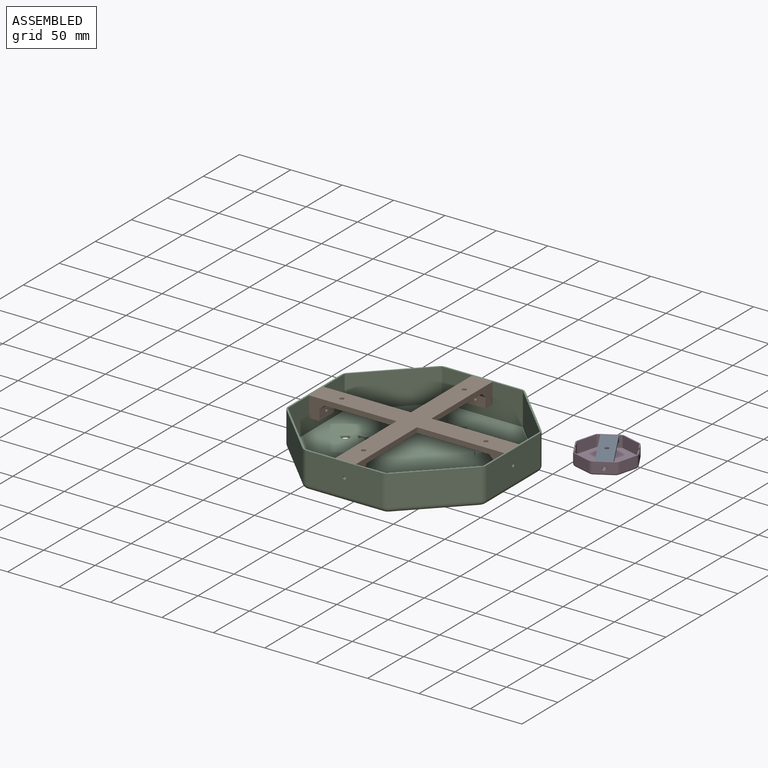
[diagram: assembled view]
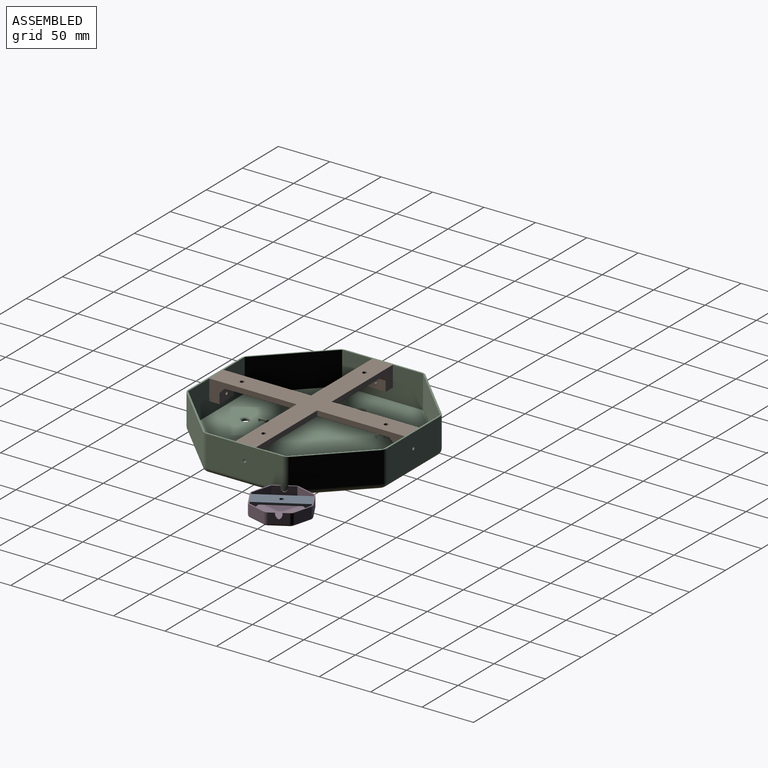
[diagram: assembled view, second angle]
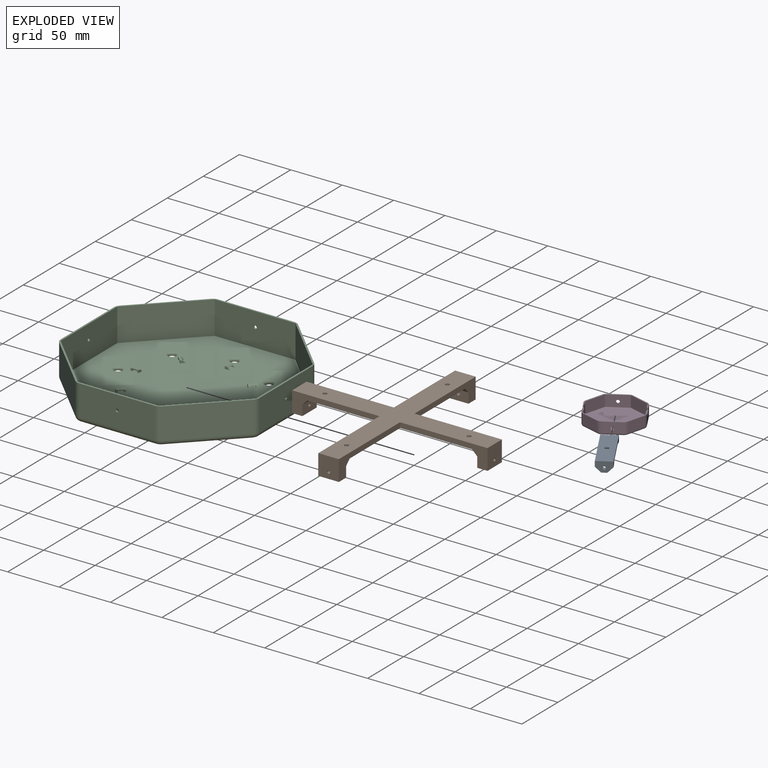
[diagram: exploded view]
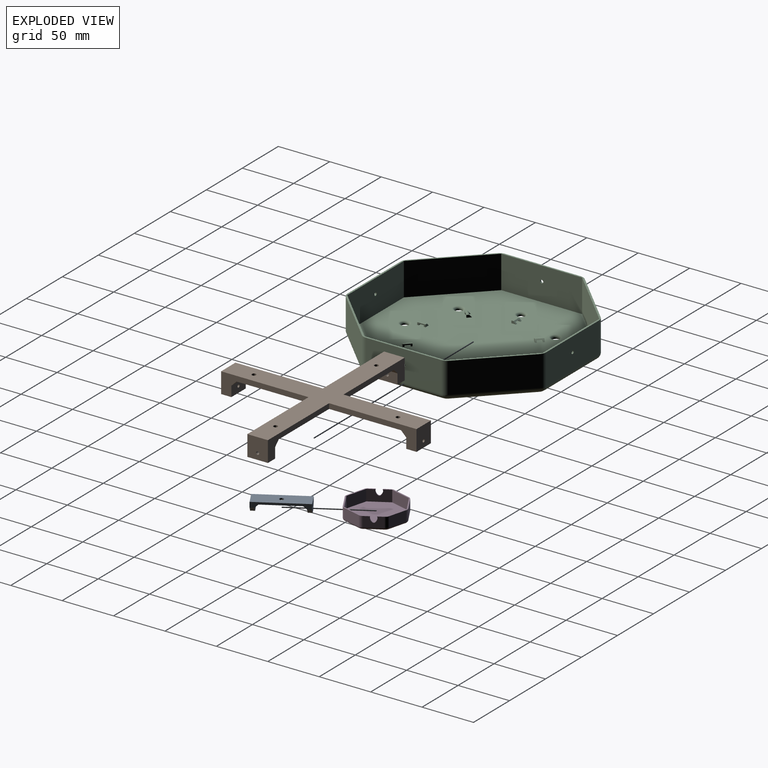
[diagram: exploded view, second angle]
ASSEMBLY  parts=4 mates=2
PART A: 20 faces, bbox 51.1x16.1x11.1 mm
  f0: plane 36.01x15.01mm, normal (0,0,1), area 505.8mm2, adj f1,f3,f11,f12,f15
  f1: plane 50x5mm, normal (0,1,0), area 137.2mm2, adj f0,f2,f4,f6,f11,f12,f16,f18
  f2: plane 15x10mm, normal (-1,0,0), area 118.4mm2, adj f1,f3,f6,f8,f13,f18,f19
  f3: plane 50x5mm, normal (0,-1,0), area 137.2mm2, adj f0,f2,f4,f6,f11,f12,f17,f19
  f4: plane 15x10mm, normal (1,0,0), area 118.4mm2, adj f1,f3,f6,f10,f14,f16,f17
  f5: cylinder r=2mm len=4mm, axis (0,0,-1), area 10.1mm2, adj f6,f15
  f6: plane 50x15mm, normal (0,0,-1), area 737.4mm2, adj f1,f2,f3,f4,f5
  f7: plane 14.8x4.9mm, normal (1,0,0), area 42.8mm2, adj f8,f11,f13,f18,f19
  f8: plane 5x4mm, normal (0,0,1), area 20mm2, adj f2,f7,f18,f19
  f9: plane 14.8x4.9mm, normal (-1,0,0), area 42.8mm2, adj f10,f12,f14,f16,f17
  f10: plane 5x4mm, normal (0,0,1), area 20mm2, adj f4,f9,f16,f17
  f11: plane 16.1x4.1mm, normal (0.71,0,0.71), area 62.4mm2, adj f0,f1,f3,f7,f13,f18,f19
  f12: plane 15.26x3.26mm, normal (-0.71,0,0.71), area 62.4mm2, adj f0,f1,f3,f9,f14,f16,f17
  f13: cylinder r=1.45mm len=4mm, axis (-1,0,0), area 36.4mm2, adj f2,f7,f11
  f14: cylinder r=1.45mm len=4.55mm, axis (1,0,0), area 37.2mm2, adj f4,f9,f12
  f15: bspline ~6.6x6.6mm, area 32.4mm2, adj f0,f5
  f16: plane 5x5mm, normal (0,0.71,0.71), area 28.3mm2, adj f1,f4,f9,f10,f12
  f17: plane 5x5mm, normal (0,-0.71,0.71), area 28.3mm2, adj f3,f4,f9,f10,f12
  f18: plane 5x5mm, normal (0,0.71,0.71), area 28.3mm2, adj f1,f2,f7,f8,f11
  f19: plane 5x5mm, normal (0,-0.71,0.71), area 28.3mm2, adj f2,f3,f7,f8,f11
PART B: 95 faces, bbox 190.1x190.1x20.1 mm
  f0: plane 160x160mm, normal (0,0,1), area 2949.5mm2, adj f2,f3,f5,f6,f8,f9,f11,f12
  f1: plane 20x20mm, normal (-1,0,0), area 393.4mm2, adj f2,f12,f13,f15,f27
  f2: plane 85x20mm, normal (0,-1,0), area 587.5mm2, adj f0,f1,f3,f13,f14,f15,f23
  f3: plane 85x20mm, normal (-1,0,0), area 587.5mm2, adj f0,f2,f4,f13,f20,f21,f25
  f4: plane 20x20mm, normal (0,-1,0), area 393.4mm2, adj f3,f5,f13,f21,f28
  f5: plane 85x20mm, normal (1,0,0), area 587.5mm2, adj f0,f4,f6,f13,f20,f21,f25
  f6: plane 85x20mm, normal (0,-1,0), area 587.5mm2, adj f0,f5,f7,f13,f16,f17,f24
  f7: plane 20x20mm, normal (1,0,0), area 393.4mm2, adj f6,f8,f13,f17,f29
  f8: plane 85x20mm, normal (0,1,0), area 587.5mm2, adj f0,f7,f9,f13,f16,f17,f24
  f9: plane 85x20mm, normal (1,0,0), area 587.5mm2, adj f0,f8,f10,f13,f18,f19,f22
  f10: plane 20x20mm, normal (0,1,0), area 393.4mm2, adj f9,f11,f13,f19,f26
  f11: plane 85x20mm, normal (-1,0,0), area 587.5mm2, adj f0,f10,f12,f13,f18,f19,f22
  f12: plane 85x20mm, normal (0,1,0), area 587.5mm2, adj f0,f1,f11,f13,f14,f15,f23
  f13: plane 190x190mm, normal (0,0,-1), area 7149.7mm2, adj f1,f2,f3,f4,f5,f6,f7,f8
  f14: plane 20x10mm, normal (1,0,0), area 193.4mm2, adj f2,f12,f15,f23,f27
  f15: plane 20x10mm, normal (0,0,1), area 200mm2, adj f1,f2,f12,f14
  f16: plane 20x10mm, normal (-1,0,0), area 193.4mm2, adj f6,f8,f17,f24,f29
  f17: plane 20x10mm, normal (0,0,1), area 200mm2, adj f6,f7,f8,f16
  f18: plane 20x10mm, normal (0,-1,0), area 193.4mm2, adj f9,f11,f19,f22,f26
  f19: plane 20x10mm, normal (0,0,1), area 200mm2, adj f9,f10,f11,f18
  f20: plane 20x10mm, normal (0,1,0), area 193.4mm2, adj f3,f5,f21,f25,f28
  f21: plane 20x10mm, normal (0,0,1), area 200mm2, adj f3,f4,f5,f20
  f22: plane 20x5mm, normal (0,-0.71,0.71), area 141.4mm2, adj f0,f9,f11,f18,f56
  f23: plane 20x5mm, normal (0.71,0,0.71), area 141.4mm2, adj f0,f2,f12,f14,f45
  f24: plane 20x5mm, normal (-0.71,0,0.71), area 141.4mm2, adj f0,f6,f8,f16,f67
  f25: plane 20x5mm, normal (0,0.71,0.71), area 141.4mm2, adj f0,f3,f5,f20,f74
  f26: cylinder r=1.45mm len=10mm, axis (0,1,0), area 91.1mm2, adj f10,f18
  f27: cylinder r=1.45mm len=10mm, axis (-1,0,0), area 91.1mm2, adj f1,f14
  f28: cylinder r=1.45mm len=10mm, axis (0,-1,0), area 91.1mm2, adj f4,f20
  f29: cylinder r=1.45mm len=10mm, axis (1,0,0), area 91.1mm2, adj f7,f16
  f30: cylinder r=2mm len=4mm, axis (0,0,1), area 50.3mm2, adj f13,f34
  f31: cylinder r=2mm len=4mm, axis (0,0,1), area 50.3mm2, adj f13,f35
  f32: cylinder r=2mm len=4mm, axis (0,0,1), area 50.3mm2, adj f13,f36
  f33: cylinder r=2mm len=4mm, axis (0,0,1), area 50.3mm2, adj f13,f37
  f34: cone r=2mm half-angle=45deg, axis (0,0,1), area 22.2mm2, adj f0,f30
  f35: cone r=2mm half-angle=45deg, axis (0,0,1), area 22.2mm2, adj f0,f31
  f36: cone r=2mm half-angle=45deg, axis (0,0,1), area 22.2mm2, adj f0,f32
  f37: cone r=2mm half-angle=45deg, axis (0,0,1), area 22.2mm2, adj f0,f33
  f38: cylinder r=5.45mm len=10.9mm, axis (-1,0,0), area 42.4mm2, adj f40,f41,f43,f47
  f39: plane 12x3.34mm, normal (-0.71,0,-0.71), area 56.7mm2, adj f41,f42,f45,f46
  f40: plane 2x0.93mm, normal (0,0,-1), area 1.9mm2, adj f38,f41,f43,f46
  f41: plane 12x7.66mm, normal (-1,0,0), area 23.9mm2, adj f38,f39,f40,f42,f46,f47
  f42: plane 16.33x12.09mm, normal (0,-1,0), area 43.1mm2, adj f0,f39,f41,f43,f44,f45,f47,f48
  f43: plane 12x12mm, normal (1,0,0), area 76mm2, adj f38,f40,f42,f44,f46,f47
  f44: plane 16.24x12mm, normal (0,0,1), area 170.7mm2, adj f42,f43,f46,f48
  f45: plane 12x5.66mm, normal (0,0,-1), area 67.9mm2, adj f23,f39,f42,f46
  f46: plane 16.33x12.09mm, normal (0,1,0), area 43.1mm2, adj f0,f39,f40,f41,f43,f44,f45,f48
  f47: plane 2x0.93mm, normal (0,0,-1), area 1.9mm2, adj f38,f41,f42,f43
  f48: cone r=4.83mm half-angle=45deg, axis (0,0,1), area 19.2mm2, adj f0,f42,f44,f46
  f49: cylinder r=5.45mm len=10.9mm, axis (0,1,0), area 42.4mm2, adj f51,f52,f53,f58
  f50: plane 12x3.34mm, normal (0,0.71,-0.71), area 56.7mm2, adj f52,f54,f56,f57
  f51: plane 2x0.93mm, normal (0,0,-1), area 1.9mm2, adj f49,f52,f53,f54
  f52: plane 12x7.66mm, normal (0,1,0), area 23.9mm2, adj f49,f50,f51,f54,f57,f58
  f53: plane 12x12mm, normal (0,-1,0), area 76mm2, adj f49,f51,f54,f55,f57,f58
  f54: plane 16.33x12.09mm, normal (-1,0,0), area 43.1mm2, adj f0,f50,f51,f52,f53,f55,f56,f59
  f55: plane 16.24x12mm, normal (0,0,1), area 170.7mm2, adj f53,f54,f57,f59
  f56: plane 12x5.66mm, normal (0,0,-1), area 67.9mm2, adj f22,f50,f54,f57
  f57: plane 16.33x12.09mm, normal (1,0,0), area 43.1mm2, adj f0,f50,f52,f53,f55,f56,f58,f59
  f58: plane 2x0.93mm, normal (0,0,-1), area 1.9mm2, adj f49,f52,f53,f57
  f59: cone r=4.83mm half-angle=45deg, axis (0,0,1), area 19.2mm2, adj f0,f54,f55,f57
  f60: cylinder r=5.45mm len=10.9mm, axis (1,0,0), area 42.4mm2, adj f62,f63,f65,f69
  f61: plane 12x3.34mm, normal (0.71,0,-0.71), area 56.7mm2, adj f63,f66,f67,f68
  f62: plane 2x0.93mm, normal (0,0,-1), area 1.9mm2, adj f60,f63,f65,f66
  f63: plane 12x7.66mm, normal (1,0,0), area 23.9mm2, adj f60,f61,f62,f66,f68,f69
  f64: plane 16.24x12mm, normal (0,0,1), area 170.7mm2, adj f65,f66,f68,f70
  f65: plane 12x12mm, normal (-1,0,0), area 76mm2, adj f60,f62,f64,f66,f68,f69
  f66: plane 16.33x12.09mm, normal (0,1,0), area 43.1mm2, adj f0,f61,f62,f63,f64,f65,f67,f70
  f67: plane 12x5.66mm, normal (0,0,-1), area 67.9mm2, adj f24,f61,f66,f68
  f68: plane 16.33x12.09mm, normal (0,-1,0), area 43.1mm2, adj f0,f61,f63,f64,f65,f67,f69,f70
  f69: plane 2x0.93mm, normal (0,0,-1), area 1.9mm2, adj f60,f63,f65,f68
  f70: cone r=4.83mm half-angle=45deg, axis (0,0,1), area 19.2mm2, adj f0,f64,f66,f68
  f71: cone r=4.83mm half-angle=45deg, axis (0,0,1), area 19.2mm2, adj f0,f73,f75,f76
  f72: plane 2x0.93mm, normal (0,0,-1), area 1.9mm2, adj f76,f77,f78,f81
  f73: plane 16.33x12.09mm, normal (-1,0,0), area 43.1mm2, adj f0,f71,f74,f75,f77,f78,f79,f80
  f74: plane 12x5.66mm, normal (0,0,-1), area 67.9mm2, adj f25,f73,f76,f80
  f75: plane 16.24x12mm, normal (0,0,1), area 170.7mm2, adj f71,f73,f76,f77
  f76: plane 16.33x12.09mm, normal (1,0,0), area 43.1mm2, adj f0,f71,f72,f74,f75,f77,f78,f80
  f77: plane 12x12mm, normal (0,1,0), area 76mm2, adj f72,f73,f75,f76,f79,f81
  f78: plane 12x7.66mm, normal (0,-1,0), area 23.9mm2, adj f72,f73,f76,f79,f80,f81
  f79: plane 2x0.93mm, normal (0,0,-1), area 1.9mm2, adj f73,f77,f78,f81
  f80: plane 12x3.34mm, normal (0,-0.71,-0.71), area 56.7mm2, adj f73,f74,f76,f78
  f81: cylinder r=5.45mm len=10.9mm, axis (0,-1,0), area 42.4mm2, adj f72,f77,f78,f79
  f82: cone r=4.83mm half-angle=45deg, axis (0,0,1), area 19.2mm2, adj f0,f86,f88,f92
  f83: plane 59.33x1.09mm, normal (1,0,0), area 58.5mm2, adj f0,f88,f92,f93
  f84: plane 59.33x1.09mm, normal (0,-1,0), area 58.5mm2, adj f0,f89,f92,f94
  f85: plane 59.33x1.09mm, normal (-1,0,0), area 58.5mm2, adj f0,f90,f91,f92
  f86: plane 59.33x1.09mm, normal (0,1,0), area 58.5mm2, adj f0,f82,f87,f92
  f87: plane 59.33x1.09mm, normal (1,0,0), area 58.5mm2, adj f0,f86,f91,f92
  f88: plane 59.33x1.09mm, normal (0,-1,0), area 58.5mm2, adj f0,f82,f83,f92
  f89: plane 59.33x1.09mm, normal (-1,0,0), area 58.5mm2, adj f0,f84,f92,f93
  f90: plane 59.33x1.09mm, normal (0,1,0), area 58.5mm2, adj f0,f85,f92,f94
  f91: cone r=4.83mm half-angle=45deg, axis (0,0,1), area 19.2mm2, adj f0,f85,f87,f92
  f92: plane 130.49x130.49mm, normal (0,0,1), area 2890.7mm2, adj f82,f83,f84,f85,f86,f87,f88,f89
  f93: cone r=4.83mm half-angle=45deg, axis (0,0,1), area 19.2mm2, adj f0,f83,f89,f92
  f94: cone r=4.83mm half-angle=45deg, axis (0,0,1), area 19.2mm2, adj f0,f84,f90,f92
PART C: 127 faces, bbox 193.2x193.2x35.4 mm
  f0: plane 183.2x183.2mm, normal (0,0,-1), area 27511.8mm2, adj f19,f20,f21,f22,f23,f24,f25,f26
  f1: plane 55.65x55.65mm, normal (0.71,0.71,0), area 2518.4mm2, adj f2,f16,f17,f18
  f2: plane 78.7x32mm, normal (1,0,0), area 2510.9mm2, adj f1,f3,f17,f18,f126
  f3: plane 55.65x55.65mm, normal (0.71,-0.71,0), area 2518.4mm2, adj f2,f4,f17,f18
  f4: plane 78.7x32mm, normal (0,-1,0), area 2510.9mm2, adj f3,f5,f17,f18,f125
  f5: plane 55.65x55.65mm, normal (-0.71,-0.71,0), area 2518.4mm2, adj f4,f6,f17,f18
  f6: plane 78.7x32mm, normal (-1,0,0), area 2510.9mm2, adj f5,f7,f17,f18,f124
  f7: plane 55.65x55.65mm, normal (-0.71,0.71,0), area 2518.4mm2, adj f6,f16,f17,f18
  f8: plane 73.4x30mm, normal (1,0,0), area 2194.4mm2, adj f17,f24,f29,f33,f124
  f9: plane 51.9x51.9mm, normal (0.71,0.71,0), area 2202mm2, adj f17,f22,f33,f37
  f10: plane 73.4x30mm, normal (0,1,0), area 2194.4mm2, adj f17,f20,f37,f41,f125
  f11: plane 51.9x51.9mm, normal (-0.71,0.71,0), area 2202mm2, adj f17,f19,f39,f41
  f12: plane 73.4x30mm, normal (-1,0,0), area 2194.4mm2, adj f17,f21,f35,f39,f126
  f13: plane 51.9x51.9mm, normal (-0.71,-0.71,0), area 2202mm2, adj f17,f23,f31,f35
  f14: plane 73.4x30mm, normal (0,-1,0), area 2194.4mm2, adj f17,f25,f27,f31,f123
  f15: plane 51.9x51.9mm, normal (0.71,-0.71,0), area 2202mm2, adj f17,f26,f27,f29
  f16: plane 78.7x32mm, normal (0,1,0), area 2510.9mm2, adj f1,f7,f17,f18,f123
  f17: plane 193.2x193.2mm, normal (0,0,1), area 1004.8mm2, adj f1,f2,f3,f4,f5,f6,f7,f8
  f18: plane 190x190mm, normal (0,0,1), area 29065.3mm2, adj f1,f2,f3,f4,f5,f6,f7,f16
  f19: cylinder r=5mm len=55.44mm, axis (-0.71,-0.71,0), area 576.5mm2, adj f0,f11,f40,f42
  f20: cylinder r=5mm len=73.4mm, axis (-1,0,0), area 576.5mm2, adj f0,f10,f38,f42
  f21: cylinder r=5mm len=73.4mm, axis (0,-1,0), area 576.5mm2, adj f0,f12,f36,f40
  f22: cylinder r=5mm len=55.44mm, axis (-0.71,0.71,0), area 576.5mm2, adj f0,f9,f34,f38
  f23: cylinder r=5mm len=55.44mm, axis (0.71,-0.71,0), area 576.5mm2, adj f0,f13,f32,f36
  f24: cylinder r=5mm len=73.4mm, axis (0,1,0), area 576.5mm2, adj f0,f8,f30,f34
  f25: cylinder r=5mm len=73.4mm, axis (1,0,0), area 576.5mm2, adj f0,f14,f28,f32
  f26: cylinder r=5mm len=55.44mm, axis (0.71,0.71,0), area 576.5mm2, adj f0,f15,f28,f30
  f27: cylinder r=8mm len=30mm, axis (0,0,-1), area 188.5mm2, adj f14,f15,f17,f28
  f28: torus R=3mm, axis (0,0,1), area 38.1mm2, adj f0,f25,f26,f27
  f29: cylinder r=8mm len=30mm, axis (0,0,-1), area 188.5mm2, adj f8,f15,f17,f30
  f30: torus R=3mm, axis (0,0,1), area 38.1mm2, adj f0,f24,f26,f29
  f31: cylinder r=8mm len=30mm, axis (0,0,-1), area 188.5mm2, adj f13,f14,f17,f32
  f32: torus R=3mm, axis (0,0,1), area 38.1mm2, adj f0,f23,f25,f31
  f33: cylinder r=8mm len=30mm, axis (0,0,-1), area 188.5mm2, adj f8,f9,f17,f34
  f34: torus R=3mm, axis (0,0,1), area 38.1mm2, adj f0,f22,f24,f33
  f35: cylinder r=8mm len=30mm, axis (0,0,-1), area 188.5mm2, adj f12,f13,f17,f36
  f36: torus R=3mm, axis (0,0,1), area 38.1mm2, adj f0,f21,f23,f35
  f37: cylinder r=8mm len=30mm, axis (0,0,-1), area 188.5mm2, adj f9,f10,f17,f38
  f38: torus R=3mm, axis (0,0,1), area 38.1mm2, adj f0,f20,f22,f37
  f39: cylinder r=8mm len=30mm, axis (0,0,-1), area 188.5mm2, adj f11,f12,f17,f40
  f40: torus R=3mm, axis (0,0,1), area 38.1mm2, adj f0,f19,f21,f39
  f41: cylinder r=8mm len=30mm, axis (0,0,-1), area 188.5mm2, adj f10,f11,f17,f42
  f42: torus R=3mm, axis (0,0,1), area 38.1mm2, adj f0,f19,f20,f41
  f43: cylinder r=3.4mm len=6.8mm, axis (0,0,1), area 21.4mm2, adj f0,f44
  f44: torus R=5.4mm, axis (0,0,1), area 81.5mm2, adj f18,f43
  f45: cylinder r=3.4mm len=6.8mm, axis (0,0,1), area 21.4mm2, adj f0,f46
  f46: torus R=5.4mm, axis (0,0,1), area 81.5mm2, adj f18,f45
  f47: cylinder r=3.4mm len=6.8mm, axis (0,0,1), area 21.4mm2, adj f0,f48
  f48: torus R=5.4mm, axis (0,0,1), area 81.5mm2, adj f18,f47
  f49: cylinder r=3.4mm len=6.8mm, axis (0,0,1), area 21.4mm2, adj f0,f50
  f50: torus R=5.4mm, axis (0,0,1), area 81.5mm2, adj f18,f49
  f51: cylinder r=3.4mm len=6.8mm, axis (0,0,1), area 21.4mm2, adj f0,f52
  f52: torus R=5.4mm, axis (0,0,1), area 81.5mm2, adj f18,f51
  f53: cylinder r=3.4mm len=6.8mm, axis (0,0,1), area 21.4mm2, adj f0,f54
  f54: torus R=5.4mm, axis (0,0,1), area 81.5mm2, adj f18,f53
  f55: cylinder r=3.4mm len=6.8mm, axis (0,0,1), area 21.4mm2, adj f0,f56
  f56: torus R=5.4mm, axis (0,0,1), area 81.5mm2, adj f18,f55
  f57: cylinder r=3.4mm len=6.8mm, axis (0,0,1), area 21.4mm2, adj f0,f58
  f58: torus R=5.4mm, axis (0,0,1), area 81.5mm2, adj f18,f57
  f59: plane 4.5x2.4mm, normal (0,-1,0), area 7.9mm2, adj f18,f60,f62,f66
  f60: plane 8x2.4mm, normal (1,0,0), area 12.2mm2, adj f18,f59,f61,f62,f63,f64,f65
  f61: plane 4.5x2.4mm, normal (0,1,0), area 7.9mm2, adj f18,f60,f62,f66
  f62: plane 8x2.1mm, normal (0,0,1), area 16.8mm2, adj f59,f60,f61,f66
  f63: plane 4.5x1.4mm, normal (0,1,0), area 5.3mm2, adj f18,f60,f65,f66
  f64: plane 4.5x1.4mm, normal (0,-1,0), area 5.3mm2, adj f18,f60,f65,f66
  f65: plane 5x3.1mm, normal (0,0,-1), area 15.5mm2, adj f60,f63,f64,f66
  f66: plane 8x2.4mm, normal (-0.71,0,0.71), area 17.3mm2, adj f18,f59,f61,f62,f63,f64,f65
  f67: plane 3.18x3.18mm, normal (0.71,-0.71,0), area 7.9mm2, adj f18,f68,f70,f74
  f68: plane 5.66x5.66mm, normal (0.71,0.71,0), area 12.2mm2, adj f18,f67,f69,f70,f71,f72,f73
  f69: plane 3.18x3.18mm, normal (-0.71,0.71,0), area 7.9mm2, adj f18,f68,f70,f74
  f70: plane 7.14x7.14mm, normal (0,0,1), area 16.8mm2, adj f67,f68,f69,f74
  f71: plane 3.18x3.18mm, normal (-0.71,0.71,0), area 5.3mm2, adj f18,f68,f73,f74
  f72: plane 3.18x3.18mm, normal (0.71,-0.71,0), area 5.3mm2, adj f18,f68,f73,f74
  f73: plane 5.73x5.73mm, normal (0,0,-1), area 15.5mm2, adj f68,f71,f72,f74
  f74: plane 7.35x7.35mm, normal (-0.5,-0.5,0.71), area 17.3mm2, adj f18,f67,f69,f70,f71,f72,f73
  f75: plane 4.5x2.4mm, normal (1,0,0), area 7.9mm2, adj f18,f76,f78,f82
  f76: plane 8x2.4mm, normal (0,1,0), area 12.2mm2, adj f18,f75,f77,f78,f79,f80,f81
  f77: plane 4.5x2.4mm, normal (-1,0,0), area 7.9mm2, adj f18,f76,f78,f82
  f78: plane 8x2.1mm, normal (0,0,1), area 16.8mm2, adj f75,f76,f77,f82
  f79: plane 4.5x1.4mm, normal (-1,0,0), area 5.3mm2, adj f18,f76,f81,f82
  f80: plane 4.5x1.4mm, normal (1,0,0), area 5.3mm2, adj f18,f76,f81,f82
  f81: plane 5x3.1mm, normal (0,0,-1), area 15.5mm2, adj f76,f79,f80,f82
  f82: plane 8x2.4mm, normal (0,-0.71,0.71), area 17.3mm2, adj f18,f75,f77,f78,f79,f80,f81
  f83: plane 3.18x3.18mm, normal (0.71,0.71,0), area 7.9mm2, adj f18,f84,f86,f90
  f84: plane 5.66x5.66mm, normal (-0.71,0.71,0), area 12.2mm2, adj f18,f83,f85,f86,f87,f88,f89
  f85: plane 3.18x3.18mm, normal (-0.71,-0.71,0), area 7.9mm2, adj f18,f84,f86,f90
  f86: plane 7.14x7.14mm, normal (0,0,1), area 16.8mm2, adj f83,f84,f85,f90
  f87: plane 3.18x3.18mm, normal (-0.71,-0.71,0), area 5.3mm2, adj f18,f84,f89,f90
  f88: plane 3.18x3.18mm, normal (0.71,0.71,0), area 5.3mm2, adj f18,f84,f89,f90
  f89: plane 5.73x5.73mm, normal (0,0,-1), area 15.5mm2, adj f84,f87,f88,f90
  f90: plane 7.35x7.35mm, normal (0.5,-0.5,0.71), area 17.3mm2, adj f18,f83,f85,f86,f87,f88,f89
  f91: plane 4.5x2.4mm, normal (0,1,0), area 7.9mm2, adj f18,f92,f94,f98
  f92: plane 8x2.4mm, normal (-1,0,0), area 12.2mm2, adj f18,f91,f93,f94,f95,f96,f97
  f93: plane 4.5x2.4mm, normal (0,-1,0), area 7.9mm2, adj f18,f92,f94,f98
  f94: plane 8x2.1mm, normal (0,0,1), area 16.8mm2, adj f91,f92,f93,f98
  f95: plane 4.5x1.4mm, normal (0,-1,0), area 5.3mm2, adj f18,f92,f97,f98
  f96: plane 4.5x1.4mm, normal (0,1,0), area 5.3mm2, adj f18,f92,f97,f98
  f97: plane 5x3.1mm, normal (0,0,-1), area 15.5mm2, adj f92,f95,f96,f98
  f98: plane 8x2.4mm, normal (0.71,0,0.71), area 17.3mm2, adj f18,f91,f93,f94,f95,f96,f97
  f99: plane 3.18x3.18mm, normal (-0.71,0.71,0), area 7.9mm2, adj f18,f100,f102,f106
  f100: plane 5.66x5.66mm, normal (-0.71,-0.71,0), area 12.2mm2, adj f18,f99,f101,f102,f103,f104,f105
  f101: plane 3.18x3.18mm, normal (0.71,-0.71,0), area 7.9mm2, adj f18,f100,f102,f106
  f102: plane 7.14x7.14mm, normal (0,0,1), area 16.8mm2, adj f99,f100,f101,f106
  f103: plane 3.18x3.18mm, normal (0.71,-0.71,0), area 5.3mm2, adj f18,f100,f105,f106
  f104: plane 3.18x3.18mm, normal (-0.71,0.71,0), area 5.3mm2, adj f18,f100,f105,f106
  f105: plane 5.73x5.73mm, normal (0,0,-1), area 15.5mm2, adj f100,f103,f104,f106
  f106: plane 7.35x7.35mm, normal (0.5,0.5,0.71), area 17.3mm2, adj f18,f99,f101,f102,f103,f104,f105
  f107: plane 4.5x2.4mm, normal (-1,0,0), area 7.9mm2, adj f18,f108,f110,f114
  f108: plane 8x2.4mm, normal (0,-1,0), area 12.2mm2, adj f18,f107,f109,f110,f111,f112,f113
  f109: plane 4.5x2.4mm, normal (1,0,0), area 7.9mm2, adj f18,f108,f110,f114
  f110: plane 8x2.1mm, normal (0,0,1), area 16.8mm2, adj f107,f108,f109,f114
  f111: plane 4.5x1.4mm, normal (1,0,0), area 5.3mm2, adj f18,f108,f113,f114
  f112: plane 4.5x1.4mm, normal (-1,0,0), area 5.3mm2, adj f18,f108,f113,f114
  f113: plane 5x3.1mm, normal (0,0,-1), area 15.5mm2, adj f108,f111,f112,f114
  f114: plane 8x2.4mm, normal (0,0.71,0.71), area 17.3mm2, adj f18,f107,f109,f110,f111,f112,f113
  f115: plane 3.18x3.18mm, normal (-0.71,-0.71,0), area 7.9mm2, adj f18,f116,f118,f122
  f116: plane 5.66x5.66mm, normal (0.71,-0.71,0), area 12.2mm2, adj f18,f115,f117,f118,f119,f120,f121
  f117: plane 3.18x3.18mm, normal (0.71,0.71,0), area 7.9mm2, adj f18,f116,f118,f122
  f118: plane 7.14x7.14mm, normal (0,0,1), area 16.8mm2, adj f115,f116,f117,f122
  f119: plane 3.18x3.18mm, normal (0.71,0.71,0), area 5.3mm2, adj f18,f116,f121,f122
  f120: plane 3.18x3.18mm, normal (-0.71,-0.71,0), area 5.3mm2, adj f18,f116,f121,f122
  f121: plane 5.73x5.73mm, normal (0,0,-1), area 15.5mm2, adj f116,f119,f120,f122
  f122: plane 7.35x7.35mm, normal (-0.5,0.5,0.71), area 17.3mm2, adj f18,f115,f117,f118,f119,f120,f121
  f123: cylinder r=1.55mm len=3.1mm, axis (0,-1,0), area 15.6mm2, adj f14,f16
  f124: cylinder r=1.55mm len=3.1mm, axis (1,0,0), area 15.6mm2, adj f6,f8
  f125: cylinder r=1.55mm len=3.1mm, axis (0,1,0), area 15.6mm2, adj f4,f10
  f126: cylinder r=1.55mm len=3.1mm, axis (-1,0,0), area 15.6mm2, adj f2,f12
PART D: 50 faces, bbox 53.2x53.2x12.4 mm
  f0: plane 52.4x23.42mm, normal (0,0,1), area 93mm2, adj f3,f4,f5,f6,f7,f9,f10,f11
  f1: plane 48.4x48.4mm, normal (0,0,-1), area 1939.1mm2, adj f20,f21,f22,f23,f24,f25,f26,f27
  f2: plane 14.64x14.64mm, normal (0.71,0.71,0), area 227.8mm2, adj f3,f17,f18,f19
  f3: plane 20.71x11.36mm, normal (1,0,0), area 200.3mm2, adj f0,f2,f4,f18,f19,f46
  f4: plane 14.64x14.64mm, normal (0.71,-0.71,0), area 227.8mm2, adj f0,f3,f5,f19
  f5: plane 20.71x11mm, normal (0,-1,0), area 220.3mm2, adj f0,f4,f6,f19,f45
  f6: plane 14.64x14.64mm, normal (-0.71,-0.71,0), area 227.8mm2, adj f0,f5,f7,f19
  f7: plane 20.71x11.36mm, normal (-1,0,0), area 200.3mm2, adj f0,f6,f8,f18,f19,f47
  f8: plane 14.64x14.64mm, normal (-0.71,0.71,0), area 227.8mm2, adj f7,f17,f18,f19
  f9: plane 17.56x10.36mm, normal (1,0,0), area 148.1mm2, adj f0,f18,f25,f30,f34,f47
  f10: plane 12.42x12.42mm, normal (0.71,0.71,0), area 175.6mm2, adj f0,f23,f34,f38
  f11: plane 17.56x10mm, normal (0,1,0), area 163.7mm2, adj f0,f21,f38,f42,f48
  f12: plane 12.42x12.42mm, normal (-0.71,0.71,0), area 175.6mm2, adj f0,f20,f40,f42
  f13: plane 17.56x10.36mm, normal (-1,0,0), area 148.1mm2, adj f0,f18,f22,f36,f40,f46
  f14: plane 12.42x12.42mm, normal (-0.71,-0.71,0), area 175.6mm2, adj f18,f24,f32,f36
  f15: plane 17.56x10mm, normal (0,-1,0), area 163.7mm2, adj f18,f26,f28,f32,f49
  f16: plane 12.42x12.42mm, normal (0.71,-0.71,0), area 175.6mm2, adj f18,f27,f28,f30
  f17: plane 20.71x11mm, normal (0,1,0), area 220.3mm2, adj f2,f8,f18,f19,f44
  f18: plane 52.4x23.42mm, normal (0,0,1), area 93mm2, adj f2,f3,f7,f8,f9,f13,f14,f15
  f19: plane 50x50mm, normal (0,0,1), area 2071.1mm2, adj f2,f3,f4,f5,f6,f7,f8,f17
  f20: cylinder r=2mm len=13.83mm, axis (-0.71,-0.71,0), area 55.2mm2, adj f1,f12,f41,f43
  f21: cylinder r=2mm len=17.56mm, axis (-1,0,0), area 55.2mm2, adj f1,f11,f39,f43
  f22: cylinder r=2mm len=17.56mm, axis (0,-1,0), area 55.2mm2, adj f1,f13,f37,f41
  f23: cylinder r=2mm len=13.83mm, axis (-0.71,0.71,0), area 55.2mm2, adj f1,f10,f35,f39
  f24: cylinder r=2mm len=13.83mm, axis (0.71,-0.71,0), area 55.2mm2, adj f1,f14,f33,f37
  f25: cylinder r=2mm len=17.56mm, axis (0,1,0), area 55.2mm2, adj f1,f9,f31,f35
  f26: cylinder r=2mm len=17.56mm, axis (1,0,0), area 55.2mm2, adj f1,f15,f29,f33
  f27: cylinder r=2mm len=13.83mm, axis (0.71,0.71,0), area 55.2mm2, adj f1,f16,f29,f31
  f28: cylinder r=5mm len=10mm, axis (0,0,-1), area 39.3mm2, adj f15,f16,f18,f29
  f29: torus R=3mm, axis (0,0,1), area 10.5mm2, adj f1,f26,f27,f28
  f30: cylinder r=5mm len=10mm, axis (0,0,-1), area 39.3mm2, adj f9,f16,f18,f31
  f31: torus R=3mm, axis (0,0,1), area 10.5mm2, adj f1,f25,f27,f30
  f32: cylinder r=5mm len=10mm, axis (0,0,-1), area 39.3mm2, adj f14,f15,f18,f33
  f33: torus R=3mm, axis (0,0,1), area 10.5mm2, adj f1,f24,f26,f32
  f34: cylinder r=5mm len=10mm, axis (0,0,-1), area 39.3mm2, adj f0,f9,f10,f35
  f35: torus R=3mm, axis (0,0,1), area 10.5mm2, adj f1,f23,f25,f34
  f36: cylinder r=5mm len=10mm, axis (0,0,-1), area 39.3mm2, adj f13,f14,f18,f37
  f37: torus R=3mm, axis (0,0,1), area 10.5mm2, adj f1,f22,f24,f36
  f38: cylinder r=5mm len=10mm, axis (0,0,-1), area 39.3mm2, adj f0,f10,f11,f39
  f39: torus R=3mm, axis (0,0,1), area 10.5mm2, adj f1,f21,f23,f38
  f40: cylinder r=5mm len=10mm, axis (0,0,-1), area 39.3mm2, adj f0,f12,f13,f41
  f41: torus R=3mm, axis (0,0,1), area 10.5mm2, adj f1,f20,f22,f40
  f42: cylinder r=5mm len=10mm, axis (0,0,-1), area 39.3mm2, adj f0,f11,f12,f43
  f43: torus R=3mm, axis (0,0,1), area 10.5mm2, adj f1,f20,f21,f42
  f44: cylinder r=1.55mm len=3.1mm, axis (0,-1,0), area 7.8mm2, adj f17,f49
  f45: cylinder r=1.55mm len=3.1mm, axis (0,1,0), area 7.8mm2, adj f5,f48
  f46: extruded ~6.15x5.6mm, area 16.9mm2, adj f0,f3,f13,f18
  f47: extruded ~6.15x5.6mm, area 16.9mm2, adj f0,f7,f9,f18
  f48: torus R=1.95mm, axis (0,1,0), area 6.7mm2, adj f11,f45
  f49: torus R=1.95mm, axis (0,-1,0), area 6.7mm2, adj f15,f44
PLACE A rot(axis=(0.87,-0.5,0),180deg) t=(140.74,66.95,7.28)mm
PLACE B rot(axis=(0,-1,0),180deg) t=(0,0,20)mm fixed
PLACE C t=(0,0,-15)mm
PLACE D rot(axis=(0,0,1),30deg) t=(140.74,66.95,-4.72)mm
MATE fastened B.f28 <-> C.f123  axis (0,-1,0) through (0,-95,6)mm
MATE fastened A.f13 <-> D.f45  axis (-0.5,0.87,0) through (128.24,88.6,1.28)mm
